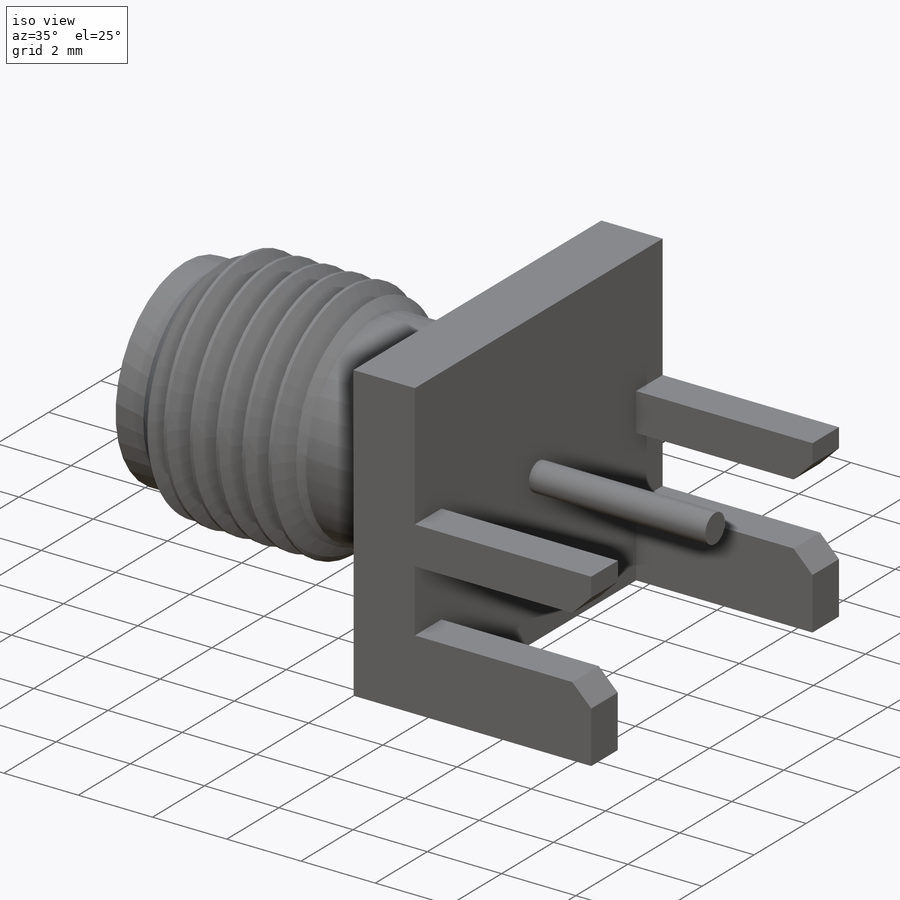
[diagram: iso view]
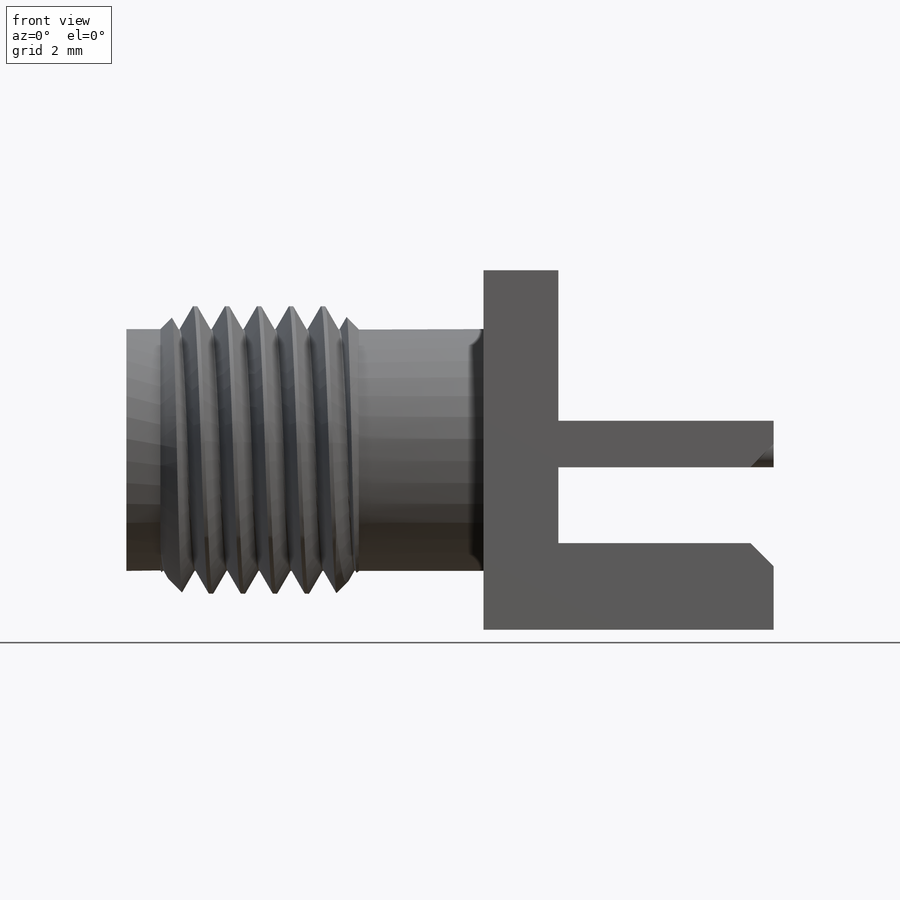
[diagram: front view]
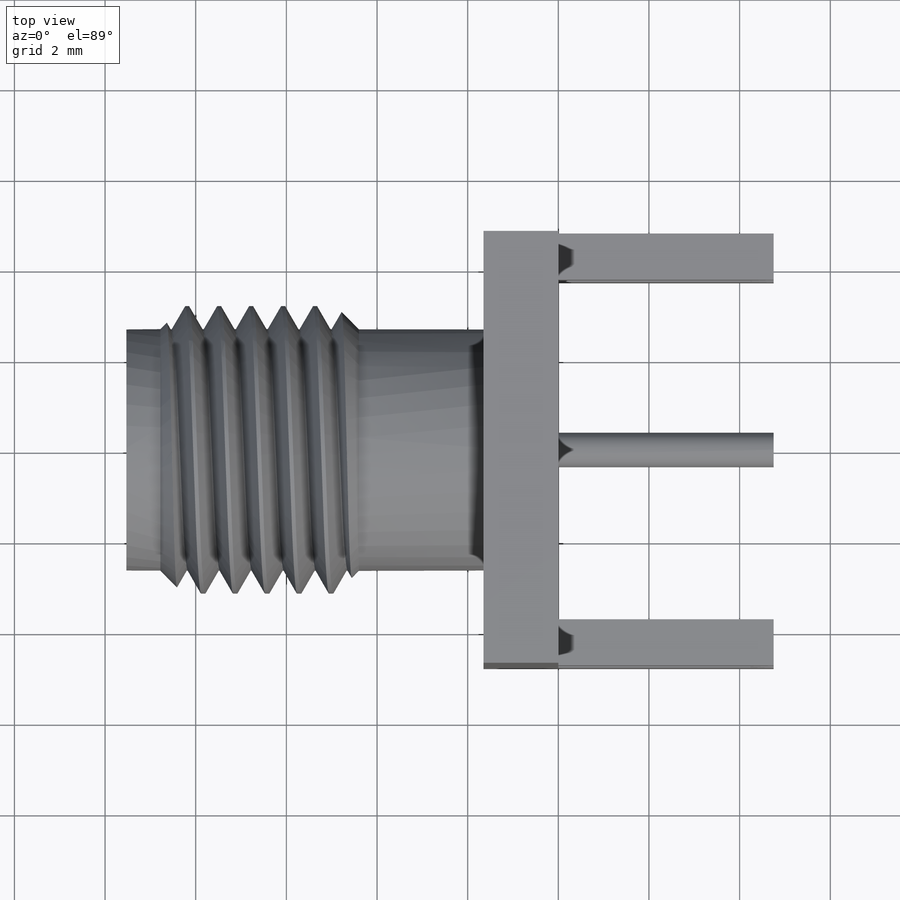
[diagram: top view]
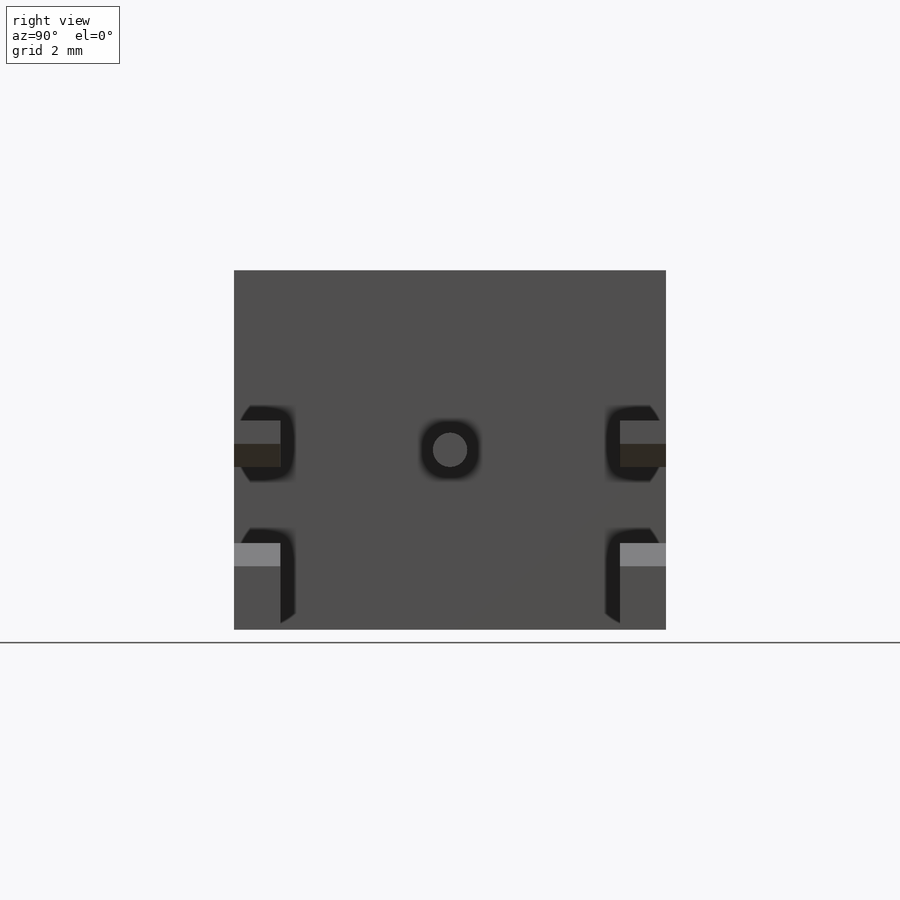
[diagram: right view]
SOLIDWORKS PART (.sldprt)
format: sldprt  version: not decoded by parser v0  size: 435,712 bytes
history: native  units: mm
features: sketch x5, material x1, extrude x1, cut_extrude x1, revolve x1, helix x1, sweep x1 (+11 scaffold rows collapsed)
feature tree (22):
  scaffold x11  (default folders/planes/origin — collapsed)
  material  "Material <not specified>"
  sketch  "Sketch1"  dims[D1=1.65mm D2=4.75mm D3=1.02mm D4=1.91mm D5=1.68mm D6=4.34mm]
  extrude  "Boss-Extrude1"  Depth=9.53mm
  sketch  "Sketch2"  dims[D1=1.02mm D2=1.02mm]
  cut_extrude  "Cut-Extrude1"  [1 undecoded]
  sketch  "Sketch3"  dims[c1.D1=0.38mm c1.D2=9.53mm c1.D3=2.667mm c1.D4=3.175mm c1.D5=~0.385049mm c2.D5=45.0deg c2.D6=7.88mm c3.D6=45.0deg c4.D6=0.75mm c4.D7=2.75mm c4.D8=2.32mm c4.D9=1.93mm]
  revolve  "Revolve1"  Angle=360deg
  sketch  "Sketch4"  dims[c1.D1=~0.880562mm c2.D1=120.0deg c2.D2=~0.421487mm c3.D2=120.0deg c3.D3=0.088mm c3.D1=~0.889248mm c4.D1=60.0deg c4.D2=~0.804243mm c5.D2=60.0deg c5.D3=0.7055mm c5.D4=0.088mm]
  sketch  "Sketch5"  dims[D1=6.35mm]
  helix  "Helix/Spiral1"  Pitch=7.055mm
  sweep  "Cut-Sweep1"
decode coverage: 8 of 10 modeling features carry decoded parameters
note: ~ marks probable driven/reference dimensions
note: 1 parameter value undecoded
note: suppression state not decoded; provenance and decode notes live in map.json
